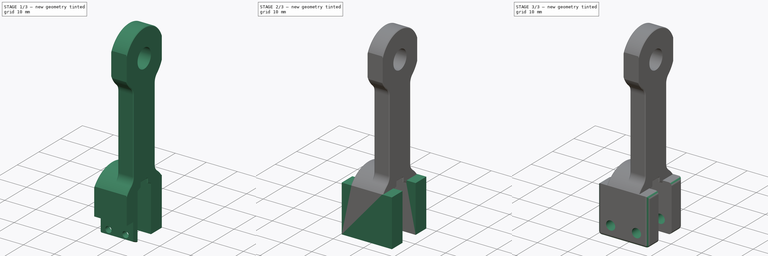
[diagram: build sequence overview — one tinted view per stage of 3, left to right]
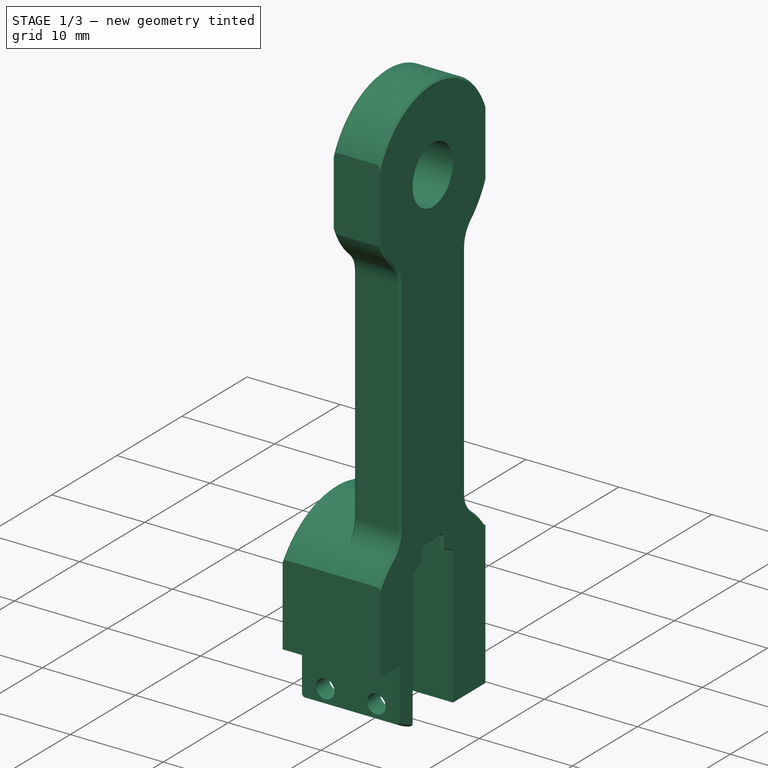
[diagram: stage 1 of 3 — iso view after this stage's code; geometry added in this stage tinted green]
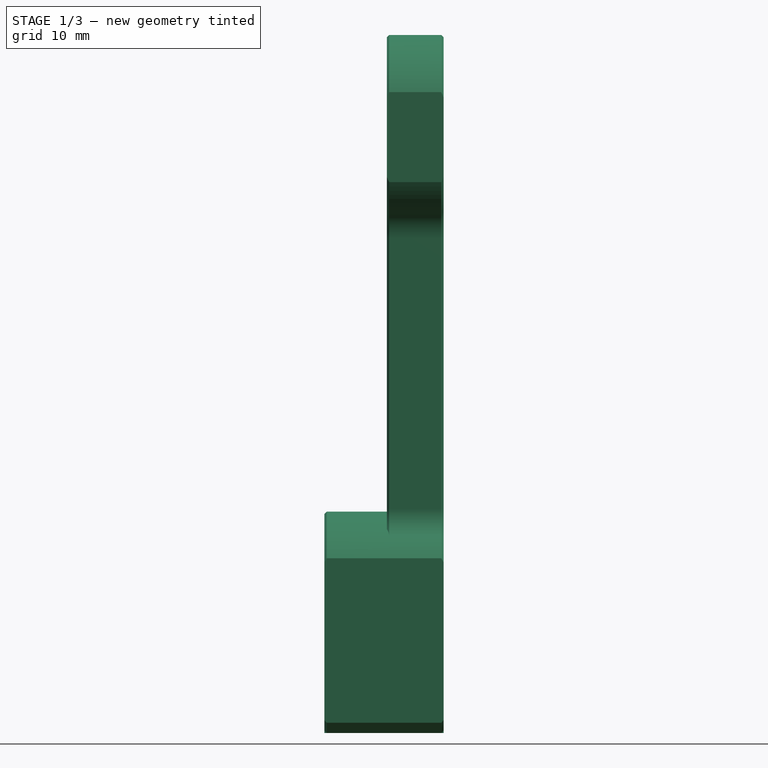
[diagram: stage 1 of 3 — front view after this stage's code; geometry added in this stage tinted green]
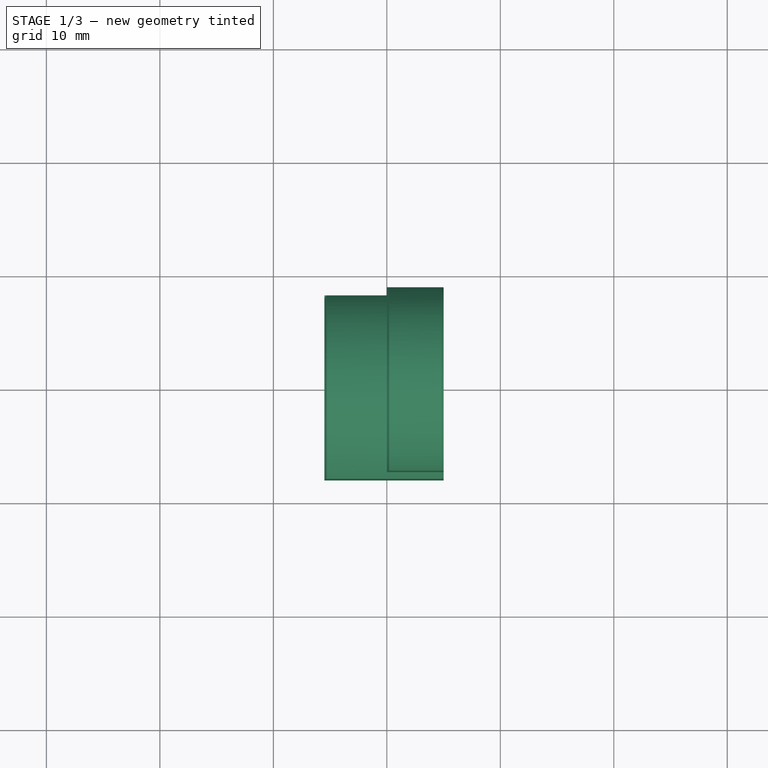
[diagram: stage 1 of 3 — top view after this stage's code; geometry added in this stage tinted green]
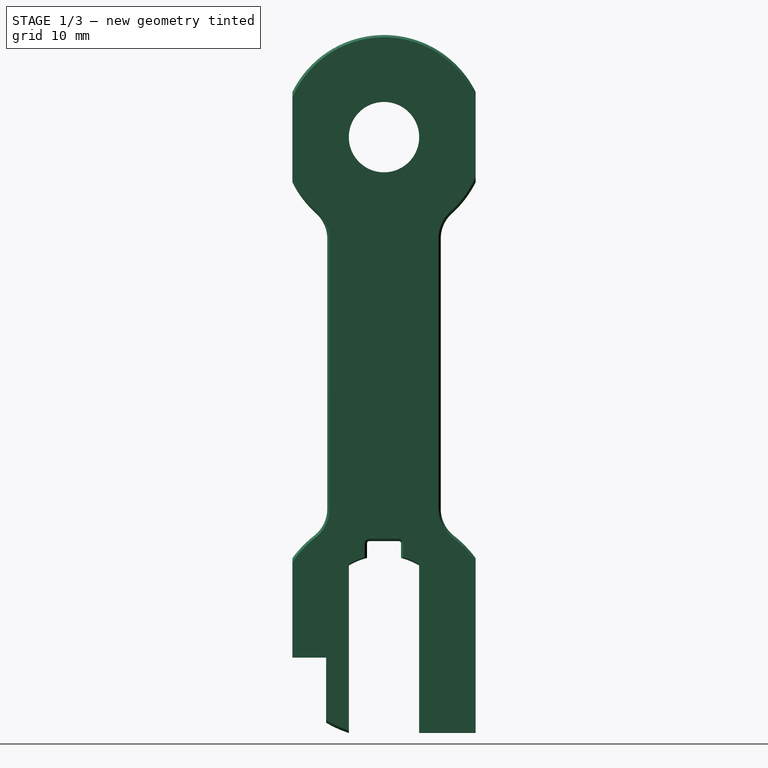
[diagram: stage 1 of 3 — right view after this stage's code; geometry added in this stage tinted green]
FCSTD DOCUMENT  (FreeCAD 0.21R33668 +26 (Git))
Label: center01
License: All rights reserved
LicenseURL: https://en.wikipedia.org/wiki/All_rights_reserved
objects: Sketcher::SketchObject×5, PartDesign::Pad×3, PartDesign::Pocket×2, PartDesign::Fillet×2, Part::Feature×1, PartDesign::FeatureBase×1, PartDesign::Body×1
note: 22 computed .brp shape members not serialized (recipe doc carries the construction recipe); baked Part::Feature solids carry a one-line shape summary decoded from their .brp

FEATURE [Part::Feature] Part__Feature  label="16_Robot_LInk3_0_1_unit"
  shape: bbox 10.5 x 20 x 61.51 mm, 93 faces (baked)
FEATURE [PartDesign::FeatureBase] BaseFeature
  BaseFeature = -> Part__Feature
FEATURE [Sketcher::SketchObject] Sketch001
  FullyConstrained = false
  MapMode = 5
  Placement = pos=(0,0,-2.86975) rot=(1,0,0;3.14159rad)
  sketch-geometry (8):
    g0: LineSegment StartX=-7.54045 StartY=13.3981 StartZ=0 EndX=9.74803 EndY=13.3981 EndZ=0
    g1: LineSegment StartX=9.74803 StartY=13.3981 StartZ=0 EndX=9.74803 EndY=8.07938 EndZ=0
    g2: LineSegment StartX=9.74803 StartY=8.07938 StartZ=0 EndX=-7.54045 EndY=8.07938 EndZ=0
    g3: LineSegment StartX=-7.54045 StartY=8.07938 StartZ=0 EndX=-7.54045 EndY=13.3981 EndZ=0
    g4: LineSegment StartX=-7.25819 StartY=-8.07938 StartZ=0 EndX=9.32464 EndY=-8.07938 EndZ=0
    g5: LineSegment StartX=9.32464 StartY=-8.07938 StartZ=0 EndX=9.32464 EndY=-12.9227 EndZ=0
    g6: LineSegment StartX=9.32464 StartY=-12.9227 StartZ=0 EndX=-7.25819 EndY=-12.9227 EndZ=0
    g7: LineSegment StartX=-7.25819 StartY=-12.9227 StartZ=0 EndX=-7.25819 EndY=-8.07938 EndZ=0
  constraints (16):
    c: Coincident(g0,g1)
    c: Coincident(g1,g2)
    c: Coincident(g2,g3)
    c: Coincident(g3,g0)
    c: Horizontal(g0)
    c: Horizontal(g2)
    c: Vertical(g1)
    c: Vertical(g3)
    c: Coincident(g4,g5)
    c: Coincident(g5,g6)
    c: Coincident(g6,g7)
    c: Coincident(g7,g4)
    c: Horizontal(g4)
    c: Horizontal(g6)
    c: Vertical(g5)
    c: Vertical(g7)
FEATURE [PartDesign::Pocket] Pocket001
  BaseFeature = -> BaseFeature
  Direction = (0,0,1)
  Length = 5
  Length2 = 5
  Profile = -> Sketch001
  ReferenceAxis = -> Sketch001 [N_Axis]
  Type = 1
FEATURE [Sketcher::SketchObject] Sketch
  ExternalGeometry = -> [Pocket001]
  FullyConstrained = true
  MapMode = 5
  Placement = pos=(0,8.07938,0) rot=(0,0.707107,0.707107;3.14159rad)
  Support = -> [Pocket001]
  sketch-geometry (4):
    g0: LineSegment StartX=-5 StartY=5.89267 StartZ=0 EndX=5.5 EndY=5.89267 EndZ=0
    g1: LineSegment StartX=5.5 StartY=5.89267 StartZ=0 EndX=5.5 EndY=-9.50737 EndZ=0
    g2: LineSegment StartX=5.5 StartY=-9.50737 StartZ=0 EndX=-5 EndY=-9.50737 EndZ=0
    g3: LineSegment StartX=-5 StartY=-9.50737 StartZ=0 EndX=-5 EndY=5.89267 EndZ=0
  constraints (12):
    c: Coincident(g0,g1)
    c: Coincident(g1,g2)
    c: Coincident(g2,g3)
    c: Coincident(g3,g0)
    c: Horizontal(g0)
    c: Horizontal(g2)
    c: Vertical(g1)
    c: Vertical(g3)
    c: Horizontal(g0,g-3)
    c: Horizontal(g-4,g1)
    c: Vertical(g0,g-5)
    c: Vertical(g0,g-6)
FEATURE [PartDesign::Pad] Pad
  BaseFeature = -> Pocket001
  Direction = (0,1,-2e-16)
  Length = 10
  Length2 = 10
  Profile = -> Sketch
  ReferenceAxis = -> Sketch [N_Axis]
  Reversed = true
  Type = 3
  UpToFace = -> Pocket001 [Face46]
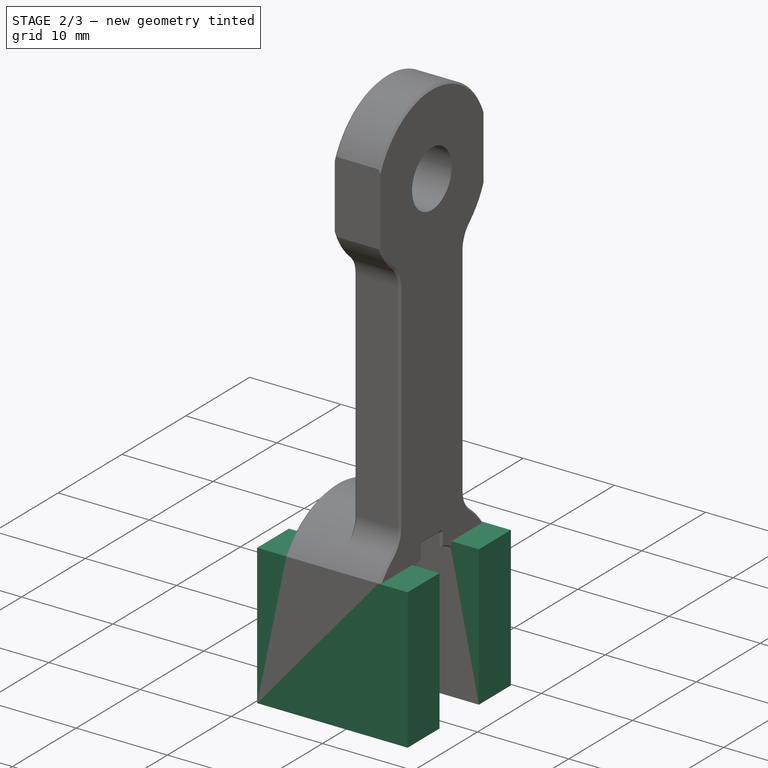
[diagram: stage 2 of 3 — iso view after this stage's code; geometry added in this stage tinted green]
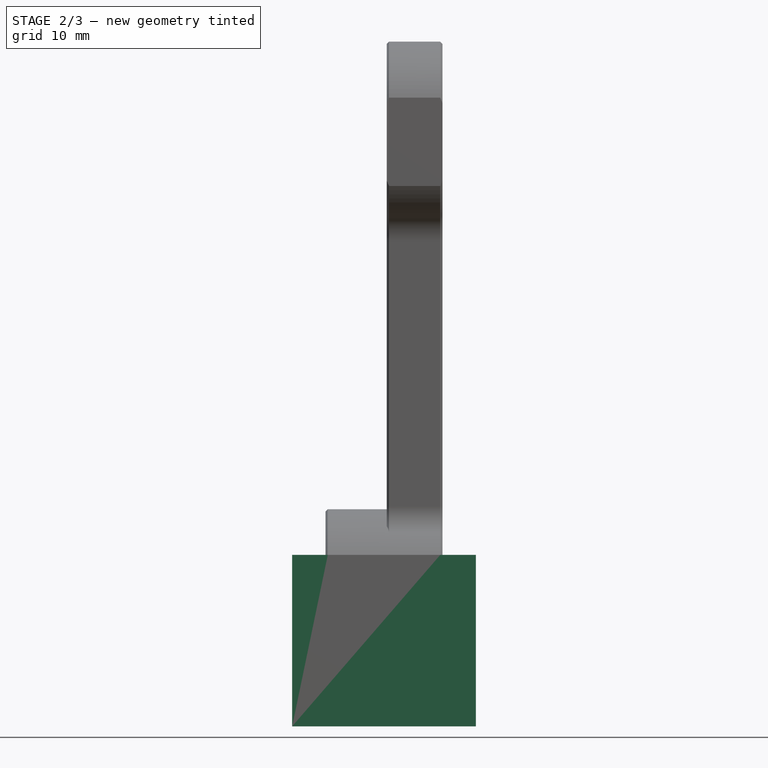
[diagram: stage 2 of 3 — front view after this stage's code; geometry added in this stage tinted green]
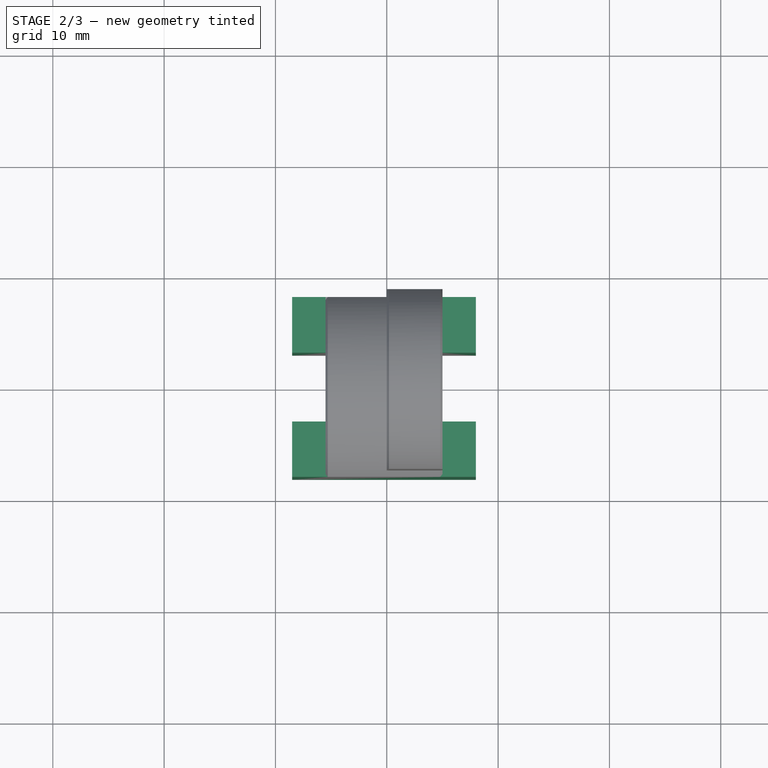
[diagram: stage 2 of 3 — top view after this stage's code; geometry added in this stage tinted green]
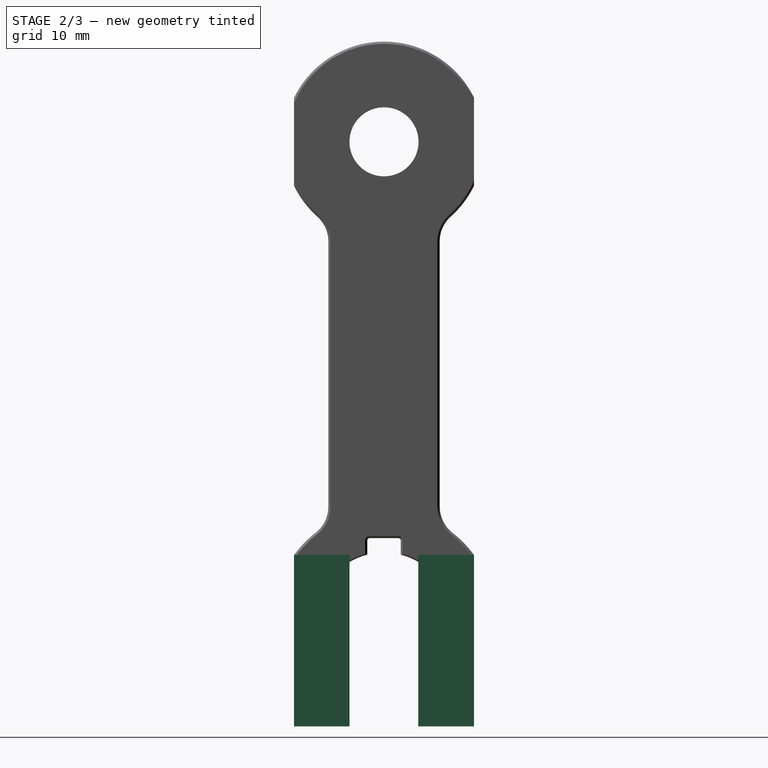
[diagram: stage 2 of 3 — right view after this stage's code; geometry added in this stage tinted green]
FEATURE [Sketcher::SketchObject] Sketch002
  ExternalGeometry = -> [Pad]
  FullyConstrained = true
  MapMode = 5
  Placement = pos=(0,-8.07938,0) rot=(1,0,0;1.5708rad)
  Support = -> [Pad]
  sketch-geometry (4):
    g0: LineSegment StartX=-8.5 StartY=5.89267 StartZ=0 EndX=8 EndY=5.89267 EndZ=0
    g1: LineSegment StartX=8 StartY=5.89267 StartZ=0 EndX=8 EndY=-9.50737 EndZ=0
    g2: LineSegment StartX=8 StartY=-9.50737 StartZ=0 EndX=-8.5 EndY=-9.50737 EndZ=0
    g3: LineSegment StartX=-8.5 StartY=-9.50737 StartZ=0 EndX=-8.5 EndY=5.89267 EndZ=0
  constraints (13):
    c: Coincident(g0,g1)
    c: Coincident(g1,g2)
    c: Coincident(g2,g3)
    c: Coincident(g3,g0)
    c: Horizontal(g0)
    c: Horizontal(g2)
    c: Horizontal(g-3,g0)
    c: Horizontal(g-4,g1)
    c: Vertical(g3)
    c: Vertical(g1)
    c: DistanceX(g0,g-6) = 3
    c: DistanceX(g-6,g-6) = 0
    c: DistanceX(g-5,g0) = 3
FEATURE [PartDesign::Pad] Pad001
  BaseFeature = -> Pad
  Direction = (0,-1,2e-16)
  Length = 10
  Length2 = 10
  Profile = -> Sketch002
  ReferenceAxis = -> Sketch002 [N_Axis]
  Refine = true
  Reversed = true
  Type = 3
  UpToFace = -> Pad [Face52]
FEATURE [Sketcher::SketchObject] Sketch003
  ExternalGeometry = -> [Pad001]
  FullyConstrained = false
  MapMode = 5
  Placement = pos=(0,8.07938,-1.9e-15) rot=(0,0.707107,0.707107;3.14159rad)
  Support = -> [Pad001]
  sketch-geometry (4):
    g0: LineSegment StartX=-8 StartY=5.89267 StartZ=0 EndX=8.5 EndY=5.89267 EndZ=0
    g1: LineSegment StartX=8.5 StartY=5.89267 StartZ=0 EndX=8.5 EndY=-9.50737 EndZ=0
    g2: LineSegment StartX=8.5 StartY=-9.50737 StartZ=0 EndX=-8 EndY=-9.50737 EndZ=0
    g3: LineSegment StartX=-8 StartY=-9.50737 StartZ=0 EndX=-8 EndY=5.89267 EndZ=0
  constraints (8):
    c: Coincident(g0,g1)
    c: Coincident(g1,g2)
    c: Coincident(g2,g3)
    c: Coincident(g3,g0)
    c: Horizontal(g0)
    c: Horizontal(g2)
    c: Vertical(g1)
    c: Vertical(g3)
FEATURE [PartDesign::Pad] Pad002
  BaseFeature = -> Pad001
  Direction = (0,1,-2e-16)
  Length = 5
  Length2 = 10
  Profile = -> Sketch003
  ReferenceAxis = -> Sketch003 [N_Axis]
  Reversed = true
  Type = 0
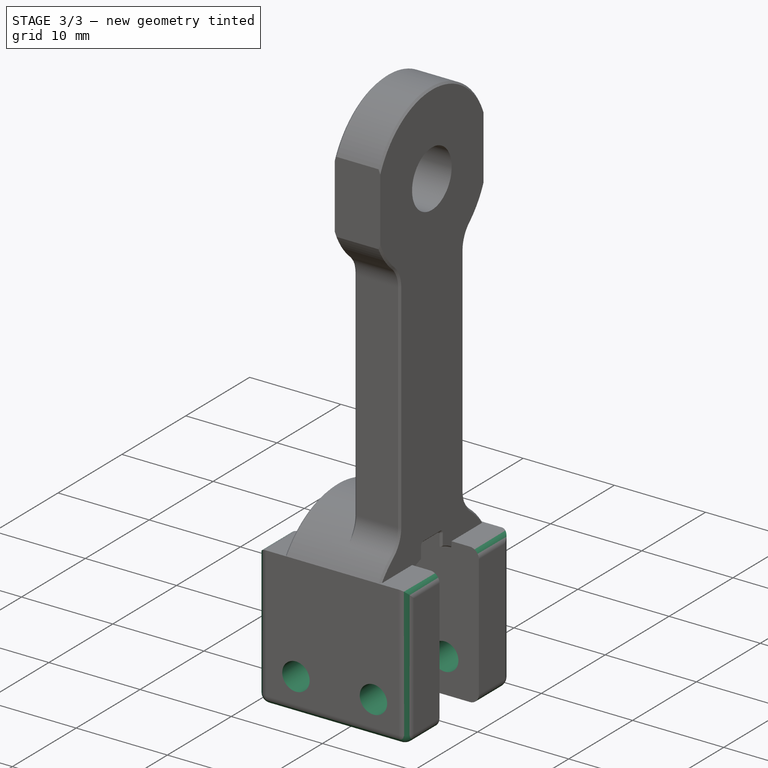
[diagram: stage 3 of 3 — iso view after this stage's code; geometry added in this stage tinted green]
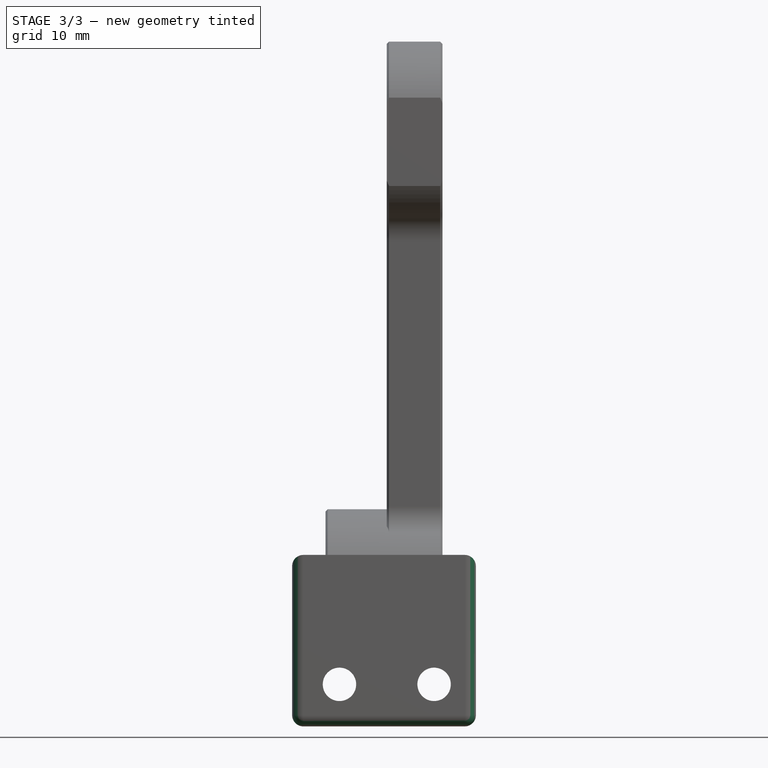
[diagram: stage 3 of 3 — front view after this stage's code; geometry added in this stage tinted green]
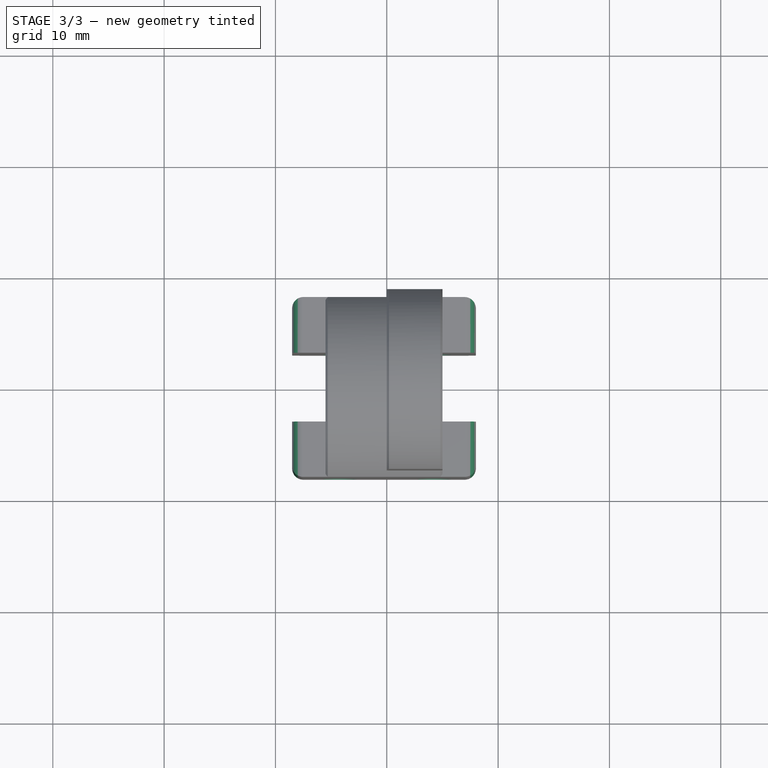
[diagram: stage 3 of 3 — top view after this stage's code; geometry added in this stage tinted green]
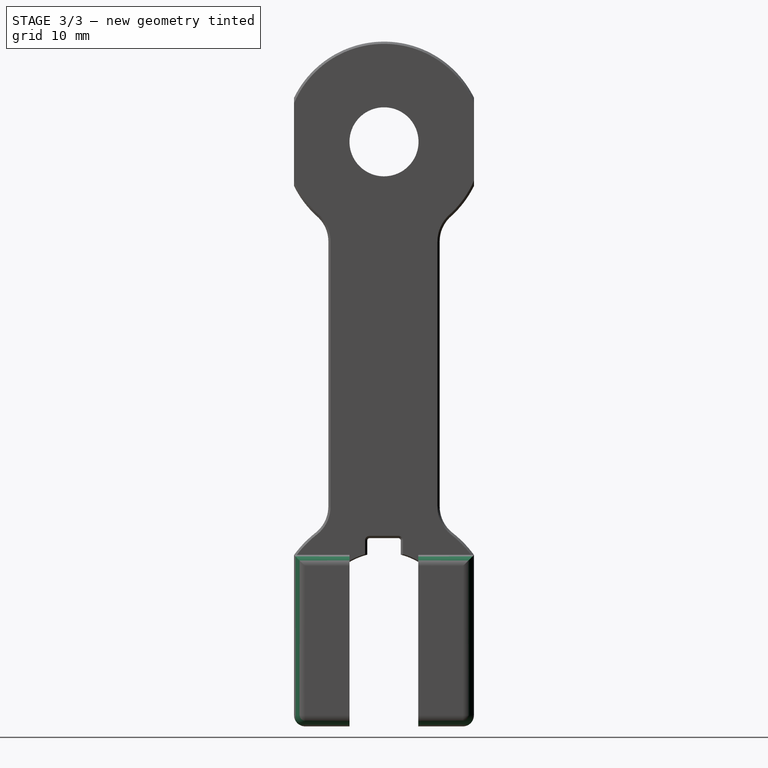
[diagram: stage 3 of 3 — right view after this stage's code; geometry added in this stage tinted green]
FEATURE [Sketcher::SketchObject] Sketch004
  ExternalGeometry = -> [Pad002]
  FullyConstrained = true
  MapMode = 5
  Placement = pos=(0,8.07938,-1.9e-15) rot=(0,0.707107,0.707107;3.14159rad)
  Support = -> [Pad002]
  sketch-geometry (2):
    g0: Circle CenterX=-4.25 CenterY=-5.73237 CenterZ=0 NormalX=0 NormalY=0 NormalZ=1 AngleXU=0 Radius=1.5
    g1: Circle CenterX=4.25 CenterY=-5.73237 CenterZ=0 NormalX=0 NormalY=0 NormalZ=1 AngleXU=0 Radius=1.5
  constraints (9):
    c: Diameter(g1) = 3
    c: Equal(g1,g0)
    c: DistanceY(g-3,g1) = 3.775
    c: Horizontal(g0,g1)
    c: DistanceX(g-1,g-3) = 8.5
    c: DistanceX(g-1,g1) = 4.25
    c: DistanceX(g0,g-1) = 4.25
    c: DistanceX(g-4,g0) = 3.75
    c: DistanceX(g1,g-3) = 4.25
FEATURE [PartDesign::Pocket] Pocket
  BaseFeature = -> Pad002
  Direction = (0,-1,2e-16)
  Length = 5
  Length2 = 5
  Profile = -> Sketch004
  ReferenceAxis = -> Sketch004 [N_Axis]
  Type = 1
FEATURE [PartDesign::Fillet] Fillet
  Base = -> Pocket [Edge182,Edge180,Edge31,Edge34,Edge117,Edge206,Edge75,Edge114]
  BaseFeature = -> Pocket
  Radius = 1
  SupportTransform = false
  UseAllEdges = false
FEATURE [PartDesign::Fillet] Fillet001
  Base = -> Fillet [Edge1,Edge121]
  BaseFeature = -> Fillet
  Radius = 1
  SupportTransform = false
  UseAllEdges = false
FEATURE [PartDesign::Body] Body
  BaseFeature = -> Part__Feature
  Group = -> [BaseFeature,Sketch001,Pocket001,Sketch,Pad,Sketch002,Pad001,Sketch003,Pad002,Sketch004,Pocket,Fillet,Fillet001]
  Origin = -> Origin
  Tip = -> Fillet001
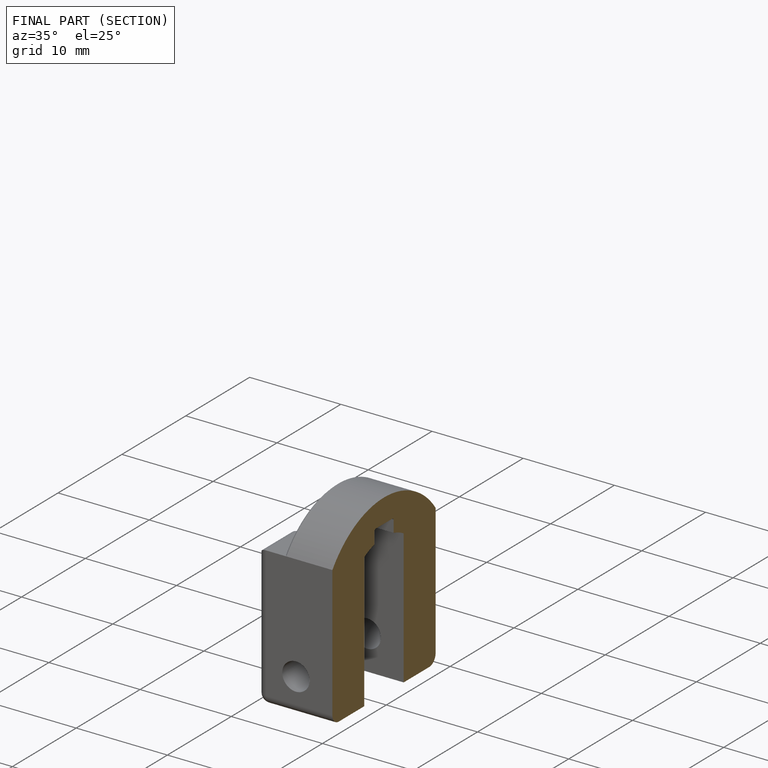
[diagram: finished part — half-section view (interior)]
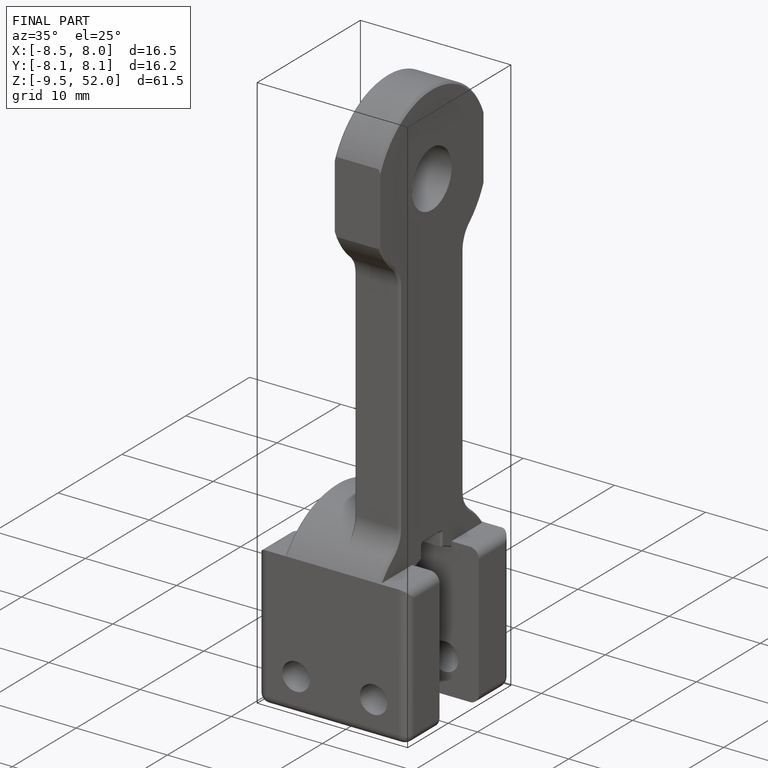
[diagram: finished part — iso view with bounding-box wireframe]
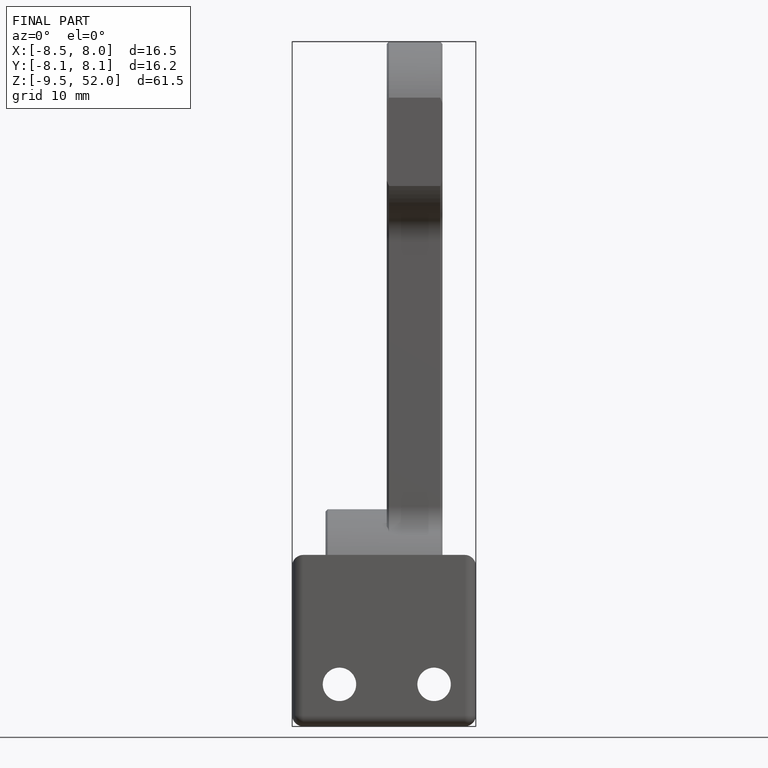
[diagram: finished part — front view with bounding-box wireframe]
